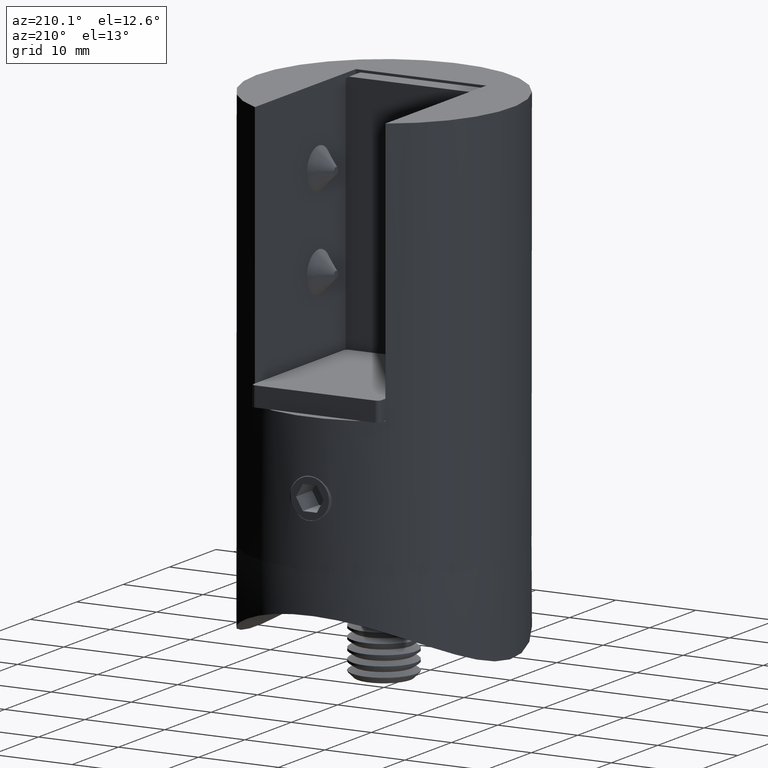
[diagram: clean part render]
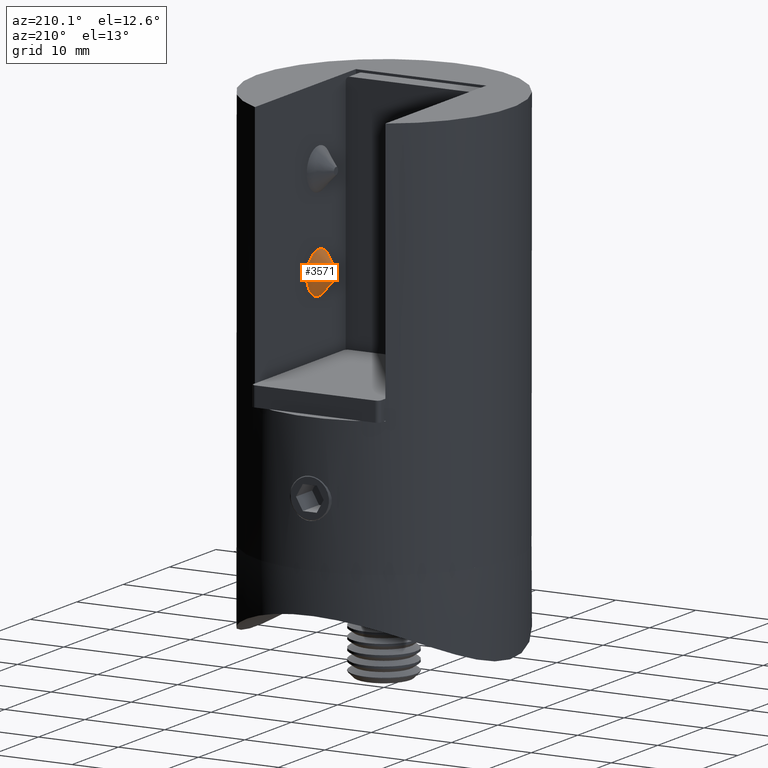
[diagram: same view with one face highlighted and labeled with its STEP entity id]
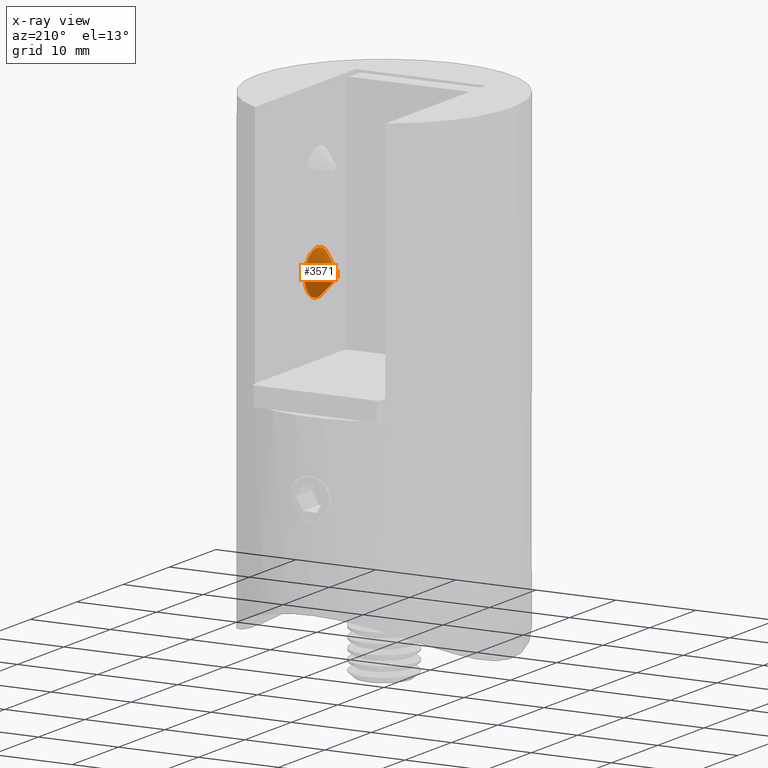
[diagram: x-ray of the same camera — body ghosted, the highlighted face saturated]
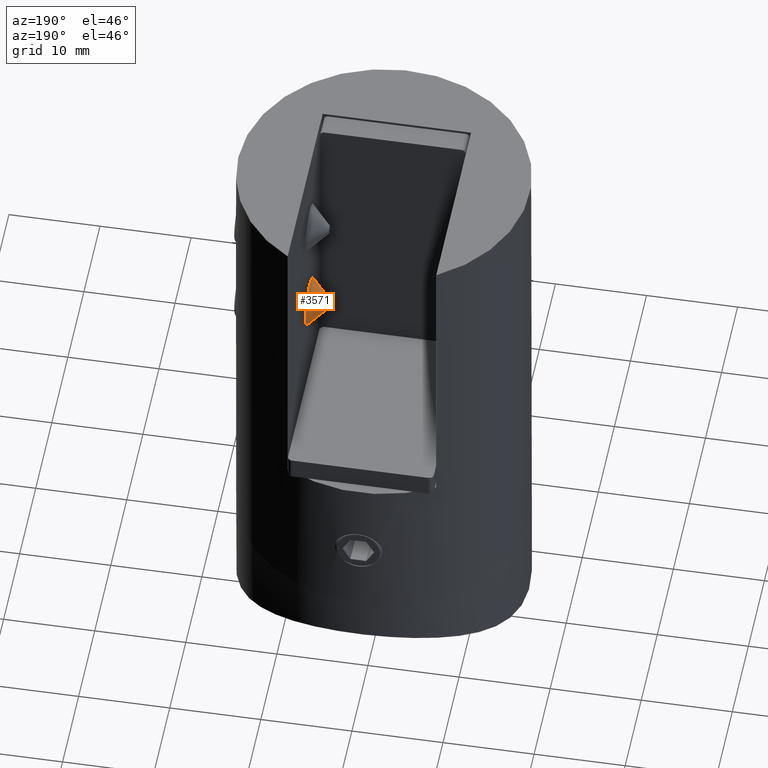
[diagram: same view with one face highlighted and labeled with its STEP entity id]
A machine part, auxiliary view. The second image highlights one B-rep face of the part: STEP entity #3571.
The next image is the same camera in x-ray: the body ghosted, the highlighted face saturated — about 0% of this face is hidden behind the body in this view.
A second angle (auxiliary view) of the same face is appended — the face is thin or edge-on in the first view.
In plain terms, the highlighted conical surface has half-angle 45 deg.
Its self-contained STEP definition (entity closure, byte-faithful):
#533 = CARTESIAN_POINT ( 'NONE',  ( 10.00000000000000178, 0.000000000000000000, 0.000000000000000000 ) ) ;
#1327 = CARTESIAN_POINT ( 'NONE',  ( 7.678362938700027840, 0.000000000000000000, 0.000000000000000000 ) ) ;
#1931 = CIRCLE ( 'NONE', #3768, 0.4500000000000000111 ) ;
#2321 = DIRECTION ( 'NONE',  ( 0.000000000000000000, 0.000000000000000000, 1.000000000000000000 ) ) ;
#3041 = CARTESIAN_POINT ( 'NONE',  ( 10.00000000000000178, 0.000000000000000000, 0.4500000000000000111 ) ) ;
#3571 = ADVANCED_FACE ( 'NONE', ( #7262, #9176 ), #10364, .T. ) ;
#3632 = DIRECTION ( 'NONE',  ( -1.000000000000000000, -0.000000000000000000, -0.000000000000000000 ) ) ;
#3724 = EDGE_LOOP ( 'NONE', ( #4089 ) ) ;
#3768 = AXIS2_PLACEMENT_3D ( 'NONE', #533, #19052, #2321 ) ;
#4089 = ORIENTED_EDGE ( 'NONE', *, *, #5421, .T. ) ;
#4325 = EDGE_LOOP ( 'NONE', ( #15219 ) ) ;
#5421 = EDGE_CURVE ( 'NONE', #9690, #9690, #1931, .T. ) ;
#6617 = CIRCLE ( 'NONE', #12023, 2.771637061299964344 ) ;
#7262 = FACE_OUTER_BOUND ( 'NONE', #4325, .T. ) ;
#8551 = EDGE_CURVE ( 'NONE', #9426, #9426, #6617, .T. ) ;
#8622 = AXIS2_PLACEMENT_3D ( 'NONE', #12833, #3632, #9677 ) ;
#9176 = FACE_BOUND ( 'NONE', #3724, .T. ) ;
#9426 = VERTEX_POINT ( 'NONE', #13911 ) ;
#9677 = DIRECTION ( 'NONE',  ( 0.000000000000000000, 0.000000000000000000, 1.000000000000000000 ) ) ;
#9690 = VERTEX_POINT ( 'NONE', #3041 ) ;
#10364 = CONICAL_SURFACE ( 'NONE', #8622, 3.000000000000000000, 0.7853981633974463916 ) ;
#11972 = DIRECTION ( 'NONE',  ( -1.000000000000000000, -1.224606353822377258E-16, -0.000000000000000000 ) ) ;
#12023 = AXIS2_PLACEMENT_3D ( 'NONE', #1327, #11972, #18112 ) ;
#12833 = CARTESIAN_POINT ( 'NONE',  ( 7.449999999999991296, 0.000000000000000000, 0.000000000000000000 ) ) ;
#13911 = CARTESIAN_POINT ( 'NONE',  ( 7.678362938700027840, 2.771637061299964344, 0.000000000000000000 ) ) ;
#15219 = ORIENTED_EDGE ( 'NONE', *, *, #8551, .F. ) ;
#18112 = DIRECTION ( 'NONE',  ( 0.000000000000000000, 1.000000000000000000, 0.000000000000000000 ) ) ;
#19052 = DIRECTION ( 'NONE',  ( -1.000000000000000000, -0.000000000000000000, -0.000000000000000000 ) ) ;